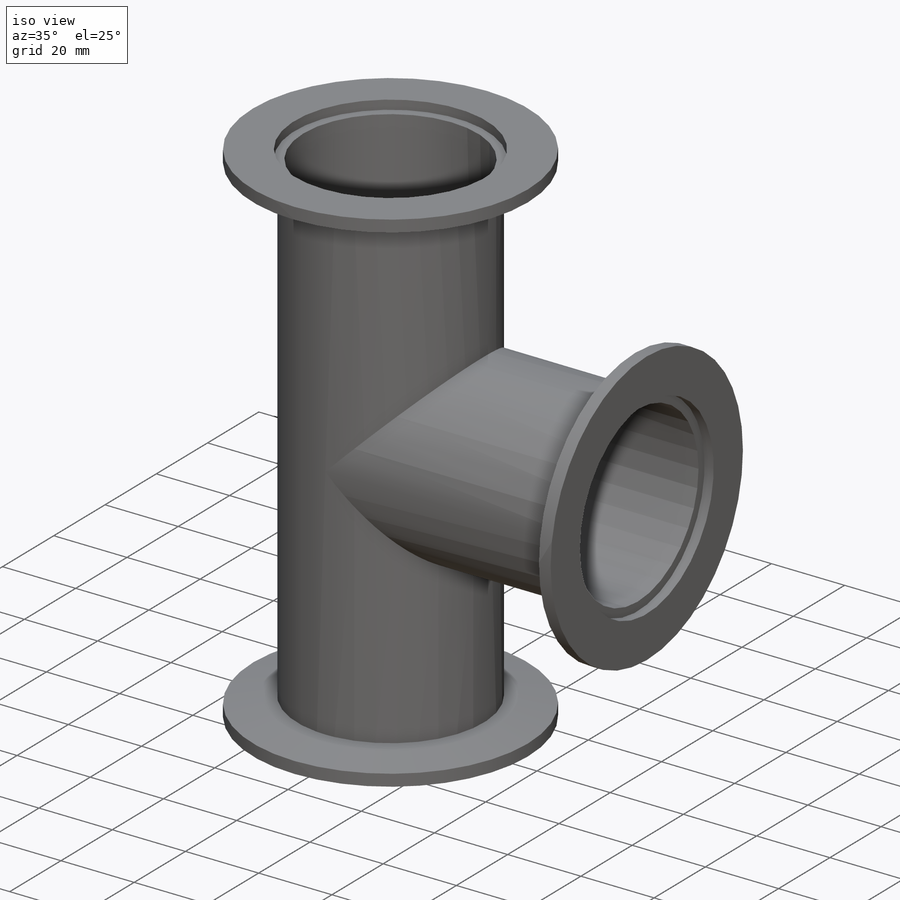
[diagram: iso view]
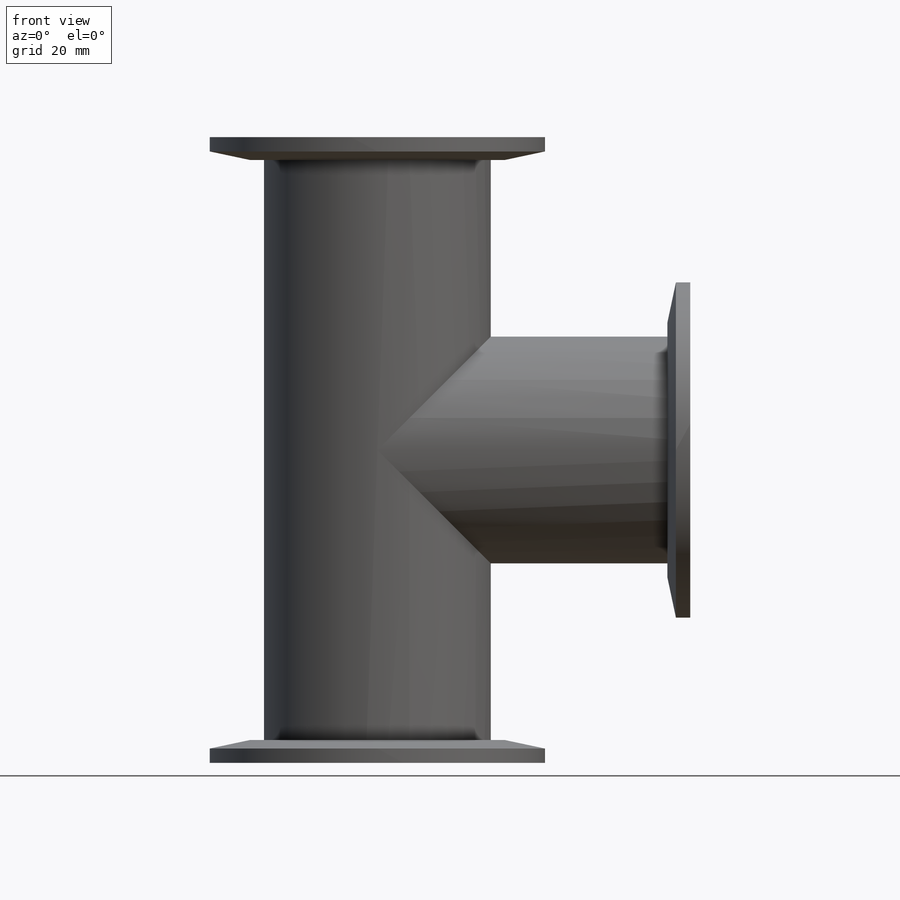
[diagram: front view]
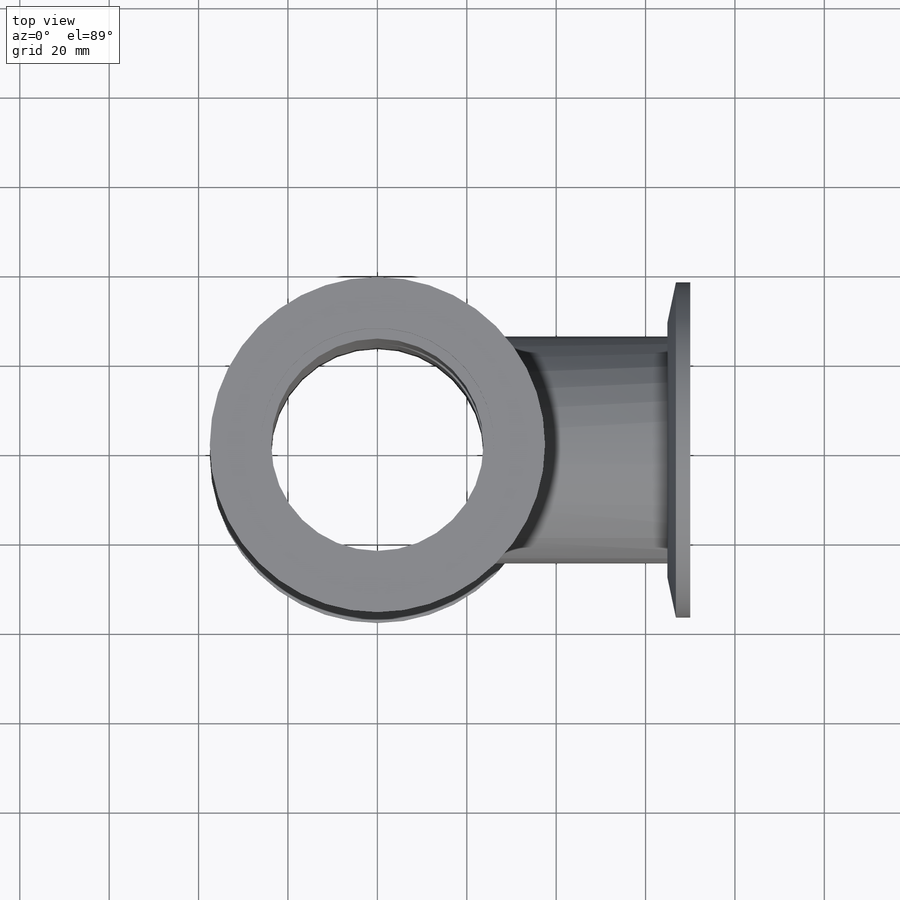
[diagram: top view]
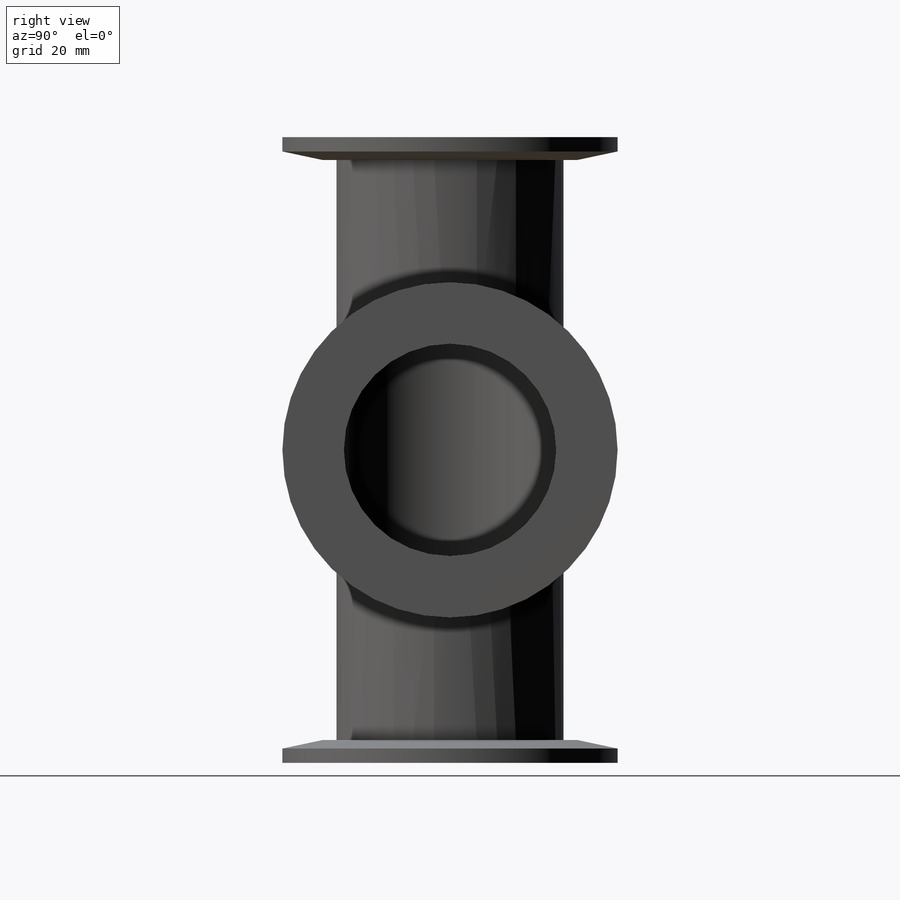
[diagram: right view]
SOLIDWORKS PART (.sldprt)
format: sldprt  version: not decoded by parser v0  size: 331,776 bytes
history: native  units: mm
features: sketch x3, plane x3, revolve x2, extrude x2, pattern_circular x2, material x1, boolean_combine x1 (+14 scaffold rows collapsed)
feature tree (28):
  scaffold x14  (default folders/planes/origin — collapsed)
  material  "AISI 316 Annealed Stainless Steel Bar (SS)"
  sketch  "Sketch1"  dims[c1.D1=21.95mm c1.Flange ID=52.2mm c1.D3=12.8mm c1.Flange OD=75.0mm c1.D5=3.2mm c1.D6=3.5mm c1.Flange Height=5.1mm c1.Flange to Center=60.7mm c1.D9=2.5mm c1.Tube OD=51.0mm c2.D1=2.0mm c3.D1=78.0deg c3.D2=~57.122406mm c3.D3=140.0mm]
  revolve  "Flange"  Angle=360deg
  sketch  "Sketch5"  dims[Outer Diameter=50.8mm]
  extrude  "Stub"  [1 undecoded]
  plane  "Plane1"  Offset=1.905mm
  extrude  "Axis2"  [1 undecoded]
  pattern_circular  "CirPattern1"  Count=3 Angle=90deg
  boolean_combine  "Combine1"
  sketch  "Bore Sketch"  dims[d1=47.5mm]
  revolve  "Bore"  [1 undecoded]
  pattern_circular  "CirPattern2"  Count=3 Angle=90deg
  plane  "Plane2"  Offset=1.905mm
  plane  "Plane3"  Offset=1.905mm
decode coverage: 6 of 10 modeling features carry decoded parameters
note: ~ marks probable driven/reference dimensions
note: 3 parameter values undecoded
summary: no parameter record found for 3 features
note: suppression state not decoded; provenance and decode notes live in map.json
